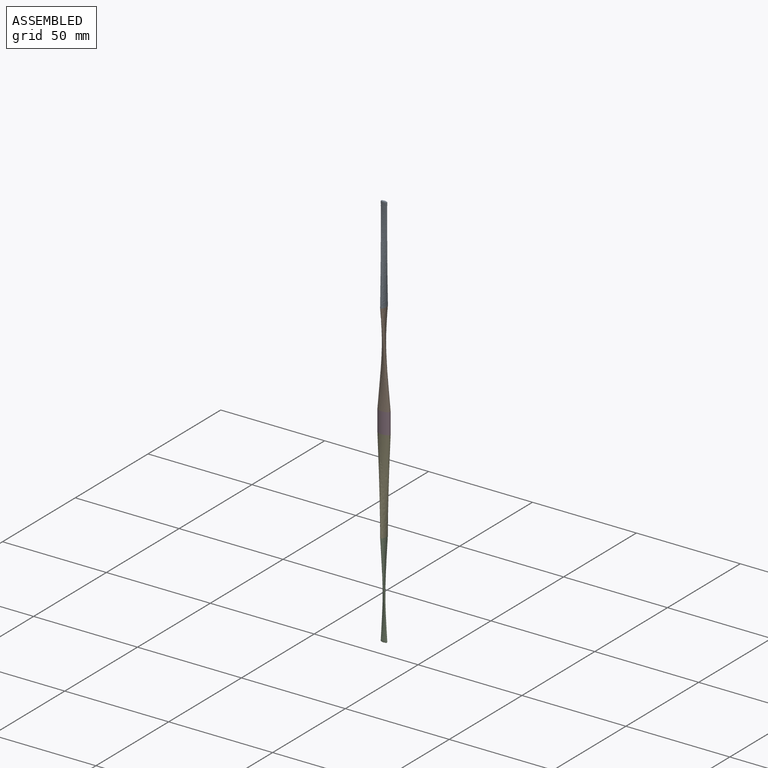
[diagram: assembled view]
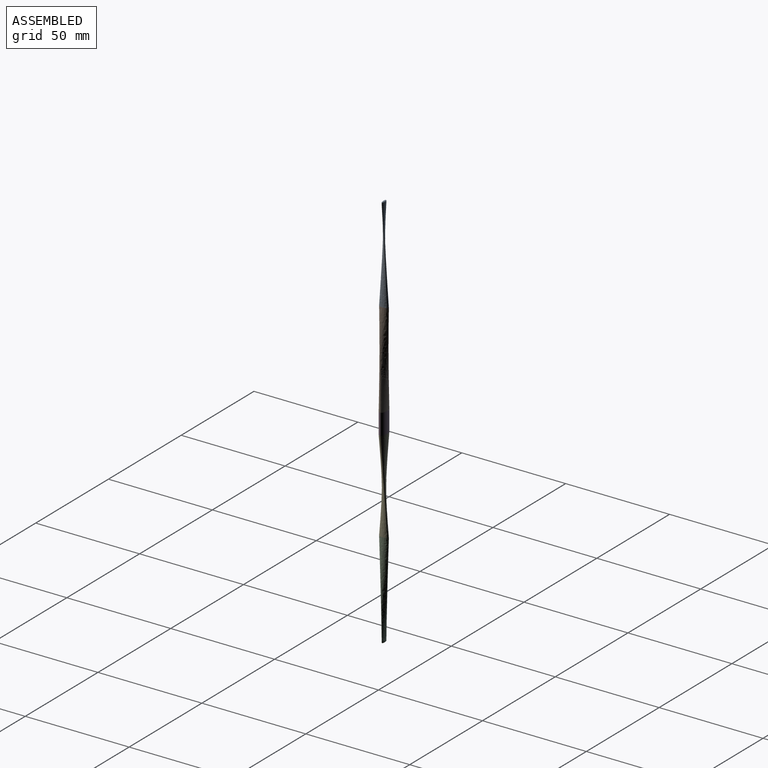
[diagram: assembled view, second angle]
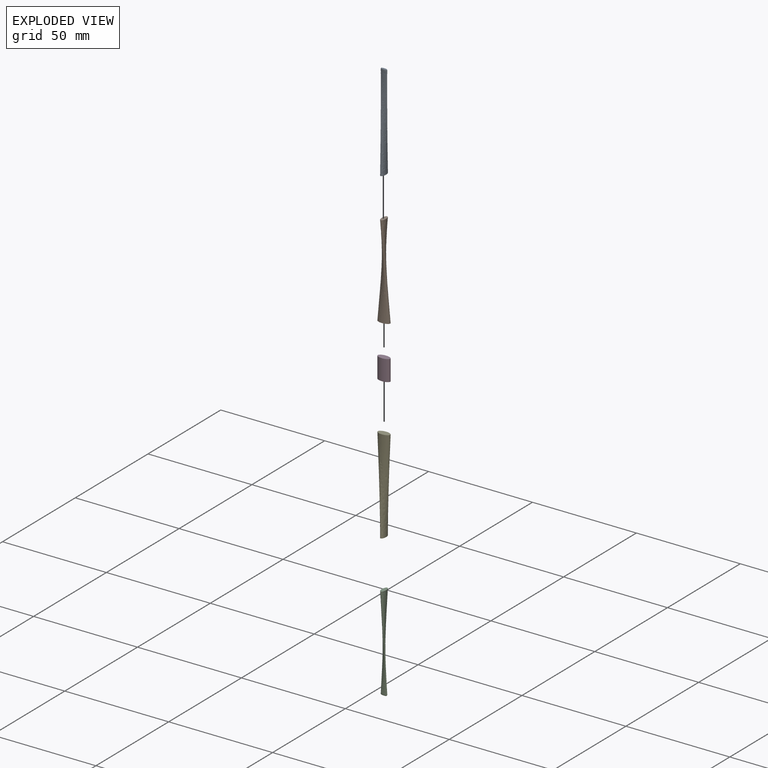
[diagram: exploded view]
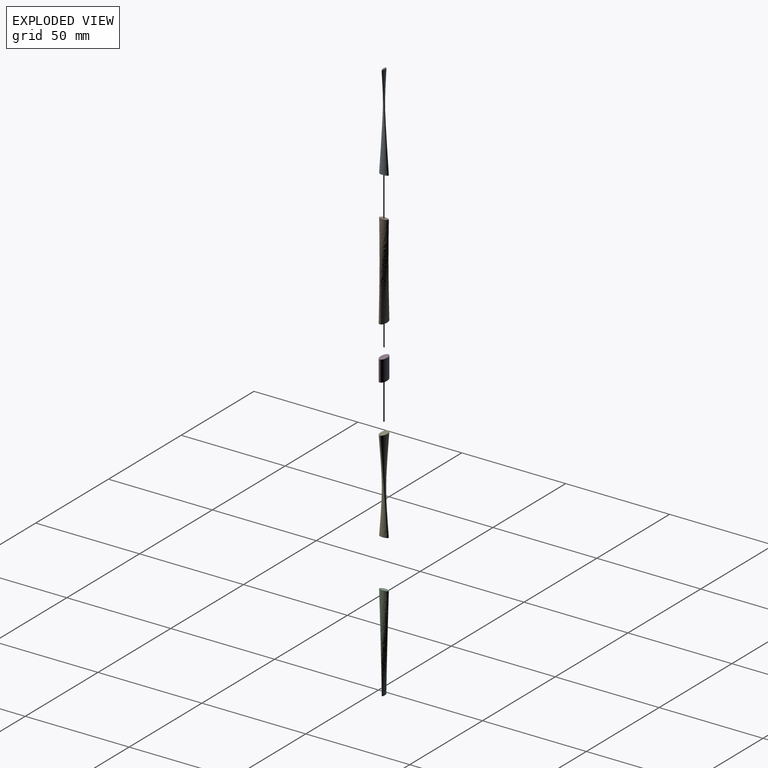
[diagram: exploded view, second angle]
ASSEMBLY  parts=5 mates=4
PART A: 8 faces, bbox 3x4.5x46 mm
  f0: plane 4.5x2mm, normal (0,0,-1), area 7.1mm2, adj f1
  f1: bspline ~45x4.5mm, area 318.7mm2, adj f0,f2
  f2: extruded ~3x1mm, area 4mm2, adj f1,f4,f5,f6,f7
  f3: plane 1.7x0.2mm, normal (0,0,1), area 0.2mm2, adj f5,f6
  f4: bspline ~0.65x0.54mm, area 0.2mm2, adj f2,f5,f6
  f5: bspline ~2.72x0.62mm, area 1.4mm2, adj f2,f3,f4,f7
  f6: bspline ~2.79x0.65mm, area 1.4mm2, adj f2,f3,f4,f7
  f7: bspline ~0.65x0.54mm, area 0.3mm2, adj f2,f5,f6
PART B: 3 faces, bbox 6x4.5x45 mm
  f0: plane 4.5x2mm, normal (0,0,1), area 7.1mm2, adj f2
  f1: plane 6x3mm, normal (0,0,-1), area 14.1mm2, adj f2
  f2: bspline ~45x6mm, area 461.4mm2, adj f0,f1
PART C: same geometry as A
PART D: 3 faces, bbox 3x6x10 mm
  f0: extruded ~10x6mm, area 145.3mm2, adj f1,f2
  f1: plane 6x3mm, normal (0,0,1), area 14.1mm2, adj f0
  f2: plane 6x3mm, normal (0,0,-1), area 14.1mm2, adj f0
PART E: same geometry as B
PLACE A rot(axis=(0.13,-0.99,0.06),0deg) t=(-38.75,10.52,27.45)mm
PLACE B rot(axis=(0.13,-0.99,0.06),0deg) t=(-38.75,10.52,27.45)mm
PLACE C rot(axis=(-1,0,0),180deg) t=(-38.75,10.52,17.45)mm
PLACE D rot(axis=(0,0,-1),90deg) t=(-47.44,28.79,17.45)mm
PLACE E rot(axis=(-1,0,0),180deg) t=(-38.75,10.52,17.45)mm
MATE fastened A.f0 <-> B.f0  axis (0,0,-1) through (-38.75,10.52,72.45)mm
MATE fastened E.f1 <-> D.f2  axis (0,0,1) through (-38.75,10.52,17.45)mm
MATE fastened D.f1 <-> B.f1  axis (0,0,1) through (-38.75,10.52,27.45)mm
MATE fastened C.f0 <-> E.f0  axis (0,0,1) through (-38.75,10.52,-27.55)mm
